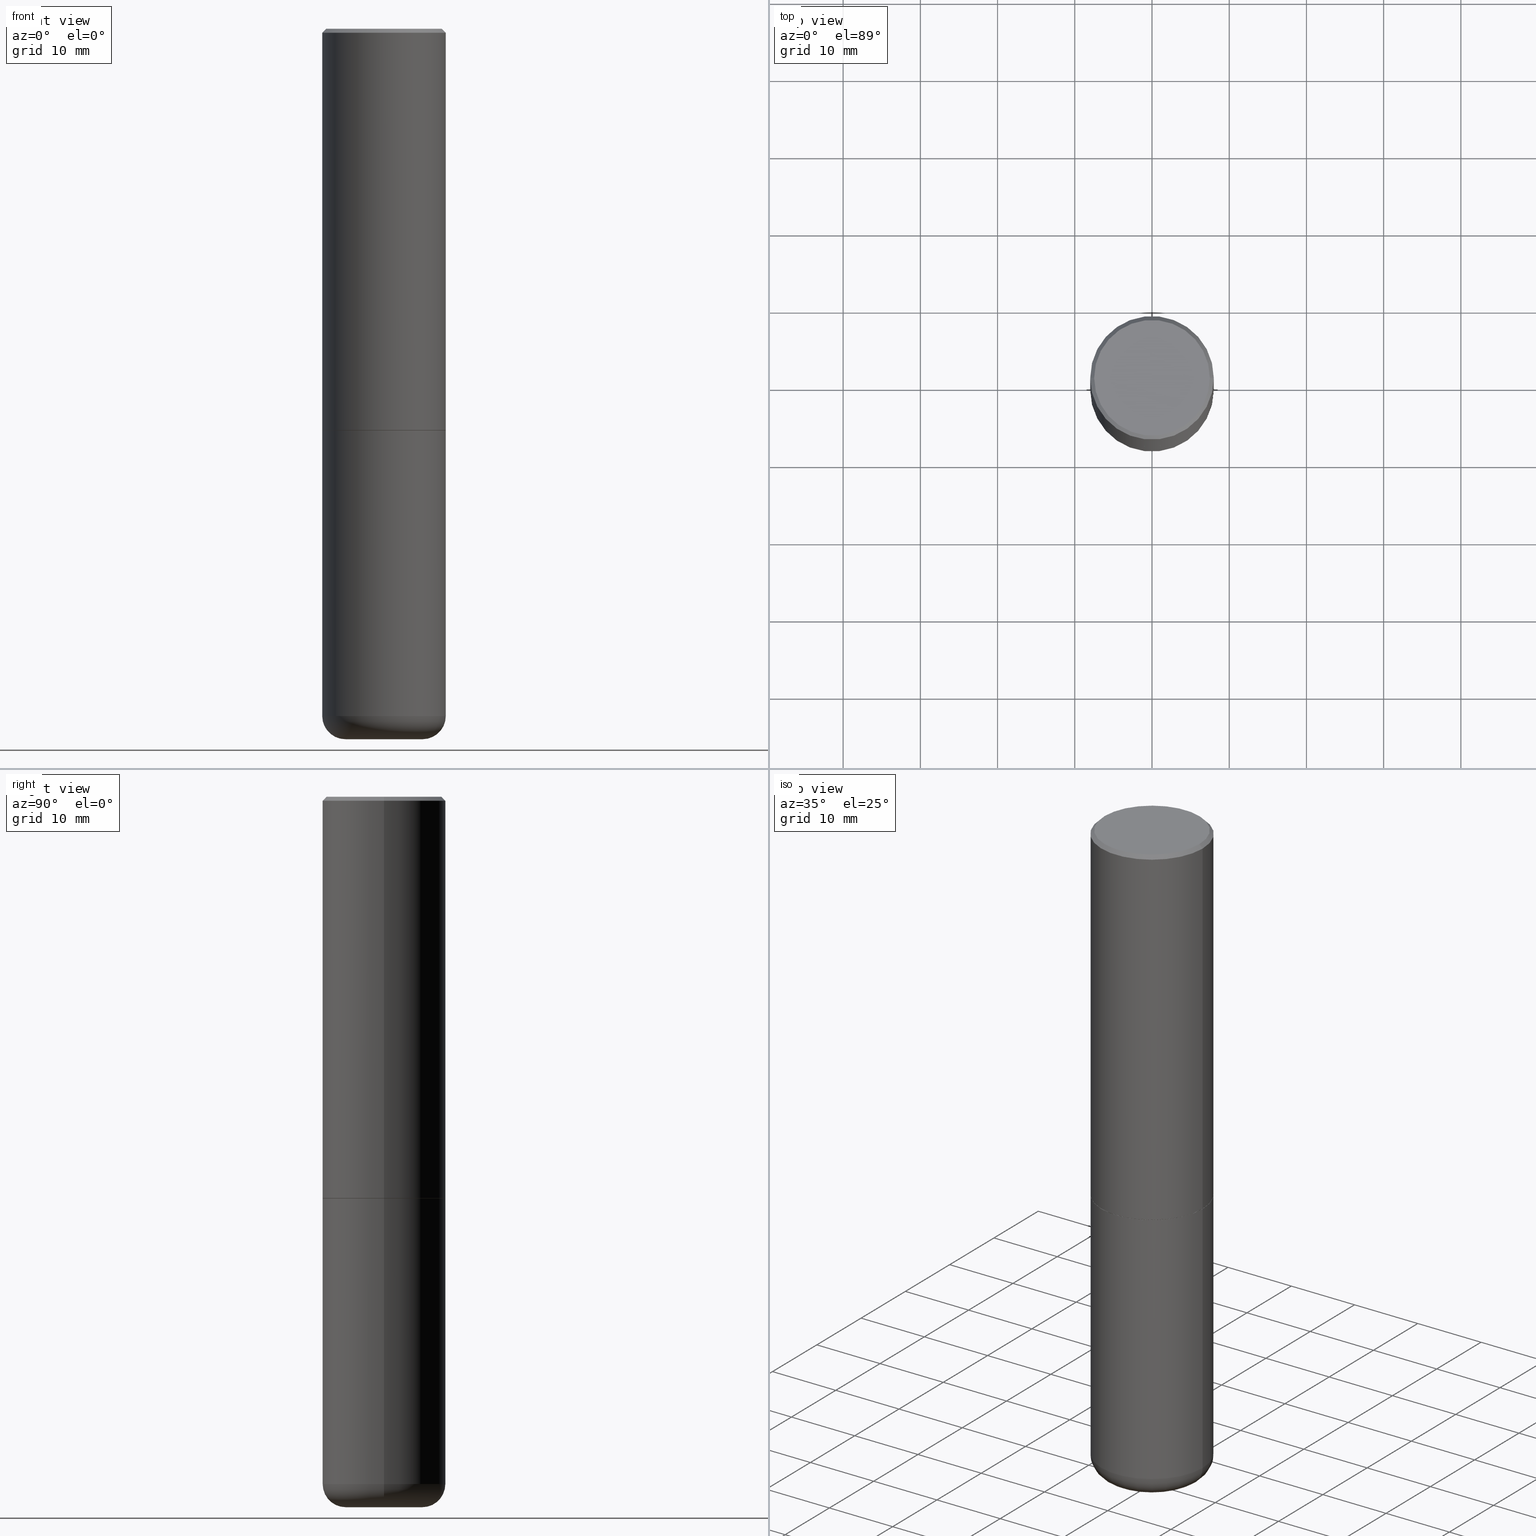
[diagram: canonical four-view strip — front | top / right | iso, engineering-drawing reading convention]
A machine part, canonical four-view strip (front | top / right | iso — engineering-drawing reading convention). The complete STEP part file that produces these views, byte-faithful:
ISO-10303-21;
HEADER;
FILE_DESCRIPTION (( 'STEP AP203' ),
    '1' );
FILE_NAME ('74750.STEP',
    '2024-05-02T19:16:22',
    ( '' ),
    ( '' ),
    'SwSTEP 2.0',
    'SolidWorks 2023',
    '' );
FILE_SCHEMA (( 'CONFIG_CONTROL_DESIGN' ));
ENDSEC;

DATA;
#1 = CIRCLE ( 'NONE', #268, 0.1180999999999999966 ) ;
#2 = CC_DESIGN_APPROVAL ( #97, ( #249 ) ) ;
#3 = CC_DESIGN_PERSON_AND_ORGANIZATION_ASSIGNMENT ( #110, #313, ( #133 ) ) ;
#4 = EDGE_LOOP ( 'NONE', ( #309, #94 ) ) ;
#5 = ORIENTED_EDGE ( 'NONE', *, *, #129, .T. ) ;
#6 = CIRCLE ( 'NONE', #173, 0.3149500000000002853 ) ;
#7 = ORGANIZATION ( 'UNSPECIFIED', 'UNSPECIFIED', '' ) ;
#8 = APPROVAL_STATUS ( 'not_yet_approved' ) ;
#9 = EDGE_CURVE ( 'NONE', #78, #160, #261, .T. ) ;
#10 = APPROVAL_DATE_TIME ( #314, #252 ) ;
#11 = DIRECTION ( 'NONE',  ( -2.445468806185136597E-29, 3.491481338843145583E-15, 1.000000000000000000 ) ) ;
#12 = DIRECTION ( 'NONE',  ( 0.000000000000000000, 0.000000000000000000, 1.000000000000000000 ) ) ;
#13 = DIRECTION ( 'NONE',  ( -2.445468806185136597E-29, 3.491481338843145583E-15, 1.000000000000000000 ) ) ;
#14 = APPROVAL_STATUS ( 'not_yet_approved' ) ;
#15 = ADVANCED_FACE ( 'NONE', ( #380 ), #364, .T. ) ;
#16 = APPROVAL_PERSON_ORGANIZATION ( #69, #340, #332 ) ;
#17 = DIRECTION ( 'NONE',  ( 1.000000000000000000, -6.982962677686267499E-15, 0.000000000000000000 ) ) ;
#18 = DIRECTION ( 'NONE',  ( 1.000000000000000000, -6.982962677686263555E-15, 4.883557194083111780E-29 ) ) ;
#19 = DIRECTION ( 'NONE',  ( -0.7071067811865465735, 2.468850131082246805E-15, -0.7071067811865484609 ) ) ;
#20 = SHAPE_DEFINITION_REPRESENTATION ( #67, #183 ) ;
#21 = PERSON ( 'UNSPECIFIED', 'UNSPECIFIED', 'UNSPECIFIED', ('UNSPECIFIED'), ('UNSPECIFIED'), ('UNSPECIFIED') ) ;
#22 = DIRECTION ( 'NONE',  ( 1.000000000000000000, -6.982962677686265922E-15, 4.876176775795935232E-29 ) ) ;
#23 = CLOSED_SHELL ( 'NONE', ( #56, #149, #406, #400, #25, #244 ) ) ;
#24 = AXIS2_PLACEMENT_3D ( 'NONE', #151, #247, #65 ) ;
#25 = ADVANCED_FACE ( 'NONE', ( #344 ), #207, .T. ) ;
#26 = DIRECTION ( 'NONE',  ( 1.000000000000000000, -6.982962677686265922E-15, 4.874125435057325556E-29 ) ) ;
#27 = CARTESIAN_POINT ( 'NONE',  ( 0.3149500000000002853, -9.343553210878135066E-15, -2.046199999999999797 ) ) ;
#28 = CARTESIAN_POINT ( 'NONE',  ( 0.2949499999999997679, -2.127023677808858891E-15, 1.835460370743323251E-16 ) ) ;
#29 = AXIS2_PLACEMENT_3D ( 'NONE', #179, #276, #120 ) ;
#30 = AXIS2_PLACEMENT_3D ( 'NONE', #381, #70, #333 ) ;
#31 = ORIENTED_EDGE ( 'NONE', *, *, #258, .T. ) ;
#32 = EDGE_LOOP ( 'NONE', ( #72, #259 ) ) ;
#33 = ORIENTED_EDGE ( 'NONE', *, *, #232, .F. ) ;
#34 = EDGE_LOOP ( 'NONE', ( #64, #132, #396, #374 ) ) ;
#35 = ORIENTED_EDGE ( 'NONE', *, *, #353, .T. ) ;
#36 = APPROVAL_PERSON_ORGANIZATION ( #107, #97, #204 ) ;
#37 = DIRECTION ( 'NONE',  ( 1.000000000000000000, -6.982962677686264344E-15, 0.000000000000000000 ) ) ;
#38 = CC_DESIGN_PERSON_AND_ORGANIZATION_ASSIGNMENT ( #234, #383, ( #249 ) ) ;
#39 = CARTESIAN_POINT ( 'NONE',  ( -0.3149500000000002853, -1.369195024882414317E-15, -2.046199999999999797 ) ) ;
#40 = FACE_OUTER_BOUND ( 'NONE', #302, .T. ) ;
#41 = TOROIDAL_SURFACE ( 'NONE', #289, 0.1968500000000000250, 0.1181000000000000105 ) ;
#42 = AXIS2_PLACEMENT_3D ( 'NONE', #89, #355, #22 ) ;
#43 = ORIENTED_EDGE ( 'NONE', *, *, #201, .T. ) ;
#44 = PLANE ( 'NONE',  #30 ) ;
#45 =( CONVERSION_BASED_UNIT ( 'INCH', #405 ) LENGTH_UNIT ( ) NAMED_UNIT ( #59 ) );
#46 = DIRECTION ( 'NONE',  ( -1.000000000000000000, 7.105427357601005014E-15, 0.000000000000000000 ) ) ;
#47 = LINE ( 'NONE', #86, #125 ) ;
#48 = EDGE_CURVE ( 'NONE', #321, #196, #408, .T. ) ;
#49 = DATE_AND_TIME ( #373, #388 ) ;
#50 = CARTESIAN_POINT ( 'NONE',  ( 0.1968500000000000250, -1.360839766627503947E-14, -3.503899999999999793 ) ) ;
#51 = DIRECTION ( 'NONE',  ( -2.445468806185136597E-29, 3.491481338843145583E-15, 1.000000000000000000 ) ) ;
#52 = VECTOR ( 'NONE', #88, 39.37007874015748143 ) ;
#53 = DATE_TIME_ROLE ( 'creation_date' ) ;
#54 = DIRECTION ( 'NONE',  ( 2.445468806185136597E-29, -3.491481338843145583E-15, -1.000000000000000000 ) ) ;
#55 = FACE_OUTER_BOUND ( 'NONE', #32, .T. ) ;
#56 = ADVANCED_FACE ( 'NONE', ( #211 ), #127, .T. ) ;
#57 = DIRECTION ( 'NONE',  ( -2.445468806185136597E-29, 3.491481338843145583E-15, 1.000000000000000000 ) ) ;
#58 = AXIS2_PLACEMENT_3D ( 'NONE', #338, #266, #37 ) ;
#59 = DIMENSIONAL_EXPONENTS ( 1.000000000000000000, 0.000000000000000000, 0.000000000000000000, 0.000000000000000000, 0.000000000000000000, 0.000000000000000000, 0.000000000000000000 ) ;
#60 = DIRECTION ( 'NONE',  ( 0.7071067811865465735, -7.319954787623252890E-15, -0.7071067811865484609 ) ) ;
#61 = EDGE_CURVE ( 'NONE', #196, #282, #47, .T. ) ;
#62 = AXIS2_PLACEMENT_3D ( 'NONE', #357, #279, #209 ) ;
#63 = EDGE_LOOP ( 'NONE', ( #342, #43, #397, #166 ) ) ;
#64 = ORIENTED_EDGE ( 'NONE', *, *, #198, .F. ) ;
#65 = DIRECTION ( 'NONE',  ( 1.000000000000000000, -6.982962677686267499E-15, 0.000000000000000000 ) ) ;
#66 = VECTOR ( 'NONE', #19, 39.37007874015748143 ) ;
#67 = PRODUCT_DEFINITION_SHAPE ( 'NONE', 'NONE',  #133 ) ;
#68 = EDGE_CURVE ( 'NONE', #160, #142, #1, .T. ) ;
#69 = PERSON_AND_ORGANIZATION ( #21, #7 ) ;
#70 = DIRECTION ( 'NONE',  ( 2.438088387897960049E-29, -3.491481338843145188E-15, -1.000000000000000000 ) ) ;
#71 = COORDINATED_UNIVERSAL_TIME_OFFSET ( 5, 0, .BEHIND. ) ;
#72 = ORIENTED_EDGE ( 'NONE', *, *, #187, .F. ) ;
#73 = FACE_OUTER_BOUND ( 'NONE', #217, .T. ) ;
#74 = ORIENTED_EDGE ( 'NONE', *, *, #76, .F. ) ;
#75 = CONICAL_SURFACE ( 'NONE', #257, 0.3139500000000000068, 0.7853981633976873100 ) ;
#76 = EDGE_CURVE ( 'NONE', #105, #142, #295, .T. ) ;
#77 = CARTESIAN_POINT ( 'NONE',  ( 5.003918271216025517E-29, -7.144269115540843617E-15, -2.046199999999999797 ) ) ;
#78 = VERTEX_POINT ( 'NONE', #281 ) ;
#79 = SECURITY_CLASSIFICATION_LEVEL ( 'unclassified' ) ;
#80 = CARTESIAN_POINT ( 'NONE',  ( 4.890937612370289799E-31, -6.982962677686315028E-17, -0.02000000000000006981 ) ) ;
#81 = CARTESIAN_POINT ( 'NONE',  ( 5.006363740022211680E-29, -7.147760596879688202E-15, -2.047200000000000131 ) ) ;
#82 =( NAMED_UNIT ( * ) SI_UNIT ( $, .STERADIAN. ) SOLID_ANGLE_UNIT ( ) );
#83 = DIRECTION ( 'NONE',  ( -2.445468806185136597E-29, 3.491481338843145583E-15, 1.000000000000000000 ) ) ;
#84 = CIRCLE ( 'NONE', #317, 0.3149499999999999522 ) ;
#85 = CARTESIAN_POINT ( 'NONE',  ( 5.006363740022209999E-29, -7.147760596879685046E-15, -2.047199999999999243 ) ) ;
#86 = CARTESIAN_POINT ( 'NONE',  ( -0.3149500000000001743, 2.237854346276436774E-15, -1.549218606675783237E-29 ) ) ;
#87 = APPROVAL_DATE_TIME ( #362, #340 ) ;
#88 = DIRECTION ( 'NONE',  ( -0.7071067811867165487, 7.493145998870964739E-15, 0.7071067811863784858 ) ) ;
#89 = CARTESIAN_POINT ( 'NONE',  ( 0.000000000000000000, 0.000000000000000000, 0.000000000000000000 ) ) ;
#90 = DIRECTION ( 'NONE',  ( -2.445468806185136597E-29, 3.491481338843145583E-15, 1.000000000000000000 ) ) ;
#91 = CC_DESIGN_SECURITY_CLASSIFICATION ( #222, ( #249 ) ) ;
#92 = ADVANCED_FACE ( 'NONE', ( #73 ), #359, .T. ) ;
#93 = CARTESIAN_POINT ( 'NONE',  ( -0.2949499999999997679, 2.094539655171994924E-15, 1.835460370743031619E-16 ) ) ;
#94 = ORIENTED_EDGE ( 'NONE', *, *, #258, .F. ) ;
#95 = VECTOR ( 'NONE', #223, 39.37007874015748143 ) ;
#96 = ORIENTED_EDGE ( 'NONE', *, *, #232, .T. ) ;
#97 = APPROVAL ( #267, 'UNSPECIFIED' ) ;
#98 = ORIENTED_EDGE ( 'NONE', *, *, #322, .F. ) ;
#99 = CIRCLE ( 'NONE', #325, 0.3139500000000000068 ) ;
#100 = CIRCLE ( 'NONE', #361, 0.3149500000000000077 ) ;
#101 = EDGE_CURVE ( 'NONE', #113, #282, #84, .T. ) ;
#102 = APPROVAL_PERSON_ORGANIZATION ( #283, #252, #273 ) ;
#103 = EDGE_LOOP ( 'NONE', ( #369, #272, #367, #265 ) ) ;
#104 = PERSON_AND_ORGANIZATION_ROLE ( 'creator' ) ;
#105 = VERTEX_POINT ( 'NONE', #382 ) ;
#106 = DIRECTION ( 'NONE',  ( -1.000000000000000000, 6.982962677686265922E-15, -4.876176775795935793E-29 ) ) ;
#107 = PERSON_AND_ORGANIZATION ( #21, #7 ) ;
#108 = ORIENTED_EDGE ( 'NONE', *, *, #236, .F. ) ;
#109 = DIRECTION ( 'NONE',  ( 1.000000000000000000, -6.982962677686265922E-15, 4.876176775795935793E-29 ) ) ;
#110 = PERSON_AND_ORGANIZATION ( #21, #7 ) ;
#111 = EDGE_CURVE ( 'NONE', #162, #321, #99, .T. ) ;
#112 = CARTESIAN_POINT ( 'NONE',  ( 5.006363740022211120E-29, -7.147760596879686624E-15, -2.047199999999999687 ) ) ;
#113 = VERTEX_POINT ( 'NONE', #224 ) ;
#114 = DIRECTION ( 'NONE',  ( 1.000000000000000000, -6.982962677686266711E-15, 0.000000000000000000 ) ) ;
#115 = EDGE_LOOP ( 'NONE', ( #393, #5, #96, #263 ) ) ;
#116 = AXIS2_PLACEMENT_3D ( 'NONE', #150, #370, #235 ) ;
#117 = PERSON_AND_ORGANIZATION ( #21, #7 ) ;
#118 = DIRECTION ( 'NONE',  ( 1.000000000000000000, -6.982962677686267499E-15, 0.000000000000000000 ) ) ;
#119 = PERSON_AND_ORGANIZATION_ROLE ( 'design_owner' ) ;
#120 = DIRECTION ( 'NONE',  ( 1.000000000000000000, -6.982962677686267499E-15, 0.000000000000000000 ) ) ;
#121 = CARTESIAN_POINT ( 'NONE',  ( 0.3149500000000001743, -2.199284095337290660E-15, 1.535751875536930690E-29 ) ) ;
#122 = DIRECTION ( 'NONE',  ( 1.000000000000000000, -6.982962677686263555E-15, 0.000000000000000000 ) ) ;
#123 = DIRECTION ( 'NONE',  ( -2.445468806185136877E-29, 3.491481338843145188E-15, 1.000000000000000000 ) ) ;
#124 = ADVANCED_FACE ( 'NONE', ( #143 ), #248, .T. ) ;
#125 = VECTOR ( 'NONE', #348, 39.37007874015748143 ) ;
#126 = VECTOR ( 'NONE', #60, 39.37007874015748143 ) ;
#127 = CYLINDRICAL_SURFACE ( 'NONE', #62, 0.3149500000000000077 ) ;
#128 = LINE ( 'NONE', #121, #202 ) ;
#129 = EDGE_CURVE ( 'NONE', #196, #394, #6, .T. ) ;
#130 = AXIS2_PLACEMENT_3D ( 'NONE', #350, #54, #188 ) ;
#131 = CC_DESIGN_APPROVAL ( #340, ( #222 ) ) ;
#132 = ORIENTED_EDGE ( 'NONE', *, *, #76, .T. ) ;
#133 = PRODUCT_DEFINITION ( 'UNKNOWN', '', #249, #301 ) ;
#134 = LOCAL_TIME ( 15, 16, 22.00000000000000000, #240 ) ;
#135 = EDGE_LOOP ( 'NONE', ( #206, #297 ) ) ;
#136 = ORIENTED_EDGE ( 'NONE', *, *, #176, .T. ) ;
#137 = EDGE_CURVE ( 'NONE', #394, #196, #410, .T. ) ;
#138 = DIRECTION ( 'NONE',  ( 2.438088387897960049E-29, -3.491481338843145188E-15, -1.000000000000000000 ) ) ;
#139 =( LENGTH_UNIT ( ) NAMED_UNIT ( * ) SI_UNIT ( $, .METRE. ) );
#140 = LINE ( 'NONE', #208, #311 ) ;
#141 = FACE_OUTER_BOUND ( 'NONE', #103, .T. ) ;
#142 = VERTEX_POINT ( 'NONE', #384 ) ;
#143 = FACE_OUTER_BOUND ( 'NONE', #63, .T. ) ;
#144 = EDGE_LOOP ( 'NONE', ( #331, #416, #339, #33 ) ) ;
#145 = CALENDAR_DATE ( 2024, 2, 5 ) ;
#146 = DIRECTION ( 'NONE',  ( -6.982962677686266711E-15, -1.000000000000000000, 3.491481338843145583E-15 ) ) ;
#147 = FACE_OUTER_BOUND ( 'NONE', #4, .T. ) ;
#148 = ORIENTED_EDGE ( 'NONE', *, *, #308, .F. ) ;
#149 = ADVANCED_FACE ( 'NONE', ( #141 ), #41, .T. ) ;
#150 = CARTESIAN_POINT ( 'NONE',  ( 8.857488016002564476E-29, -1.264614540928987199E-14, -3.621999999999999886 ) ) ;
#151 = CARTESIAN_POINT ( 'NONE',  ( 8.857488016002564476E-29, -1.264614540928987199E-14, -3.621999999999999886 ) ) ;
#152 = MANIFOLD_SOLID_BREP ( 'Body-Move/Copy2[1]', #23 ) ;
#153 = CARTESIAN_POINT ( 'NONE',  ( 8.568678149992099474E-29, -1.223380146317249786E-14, -3.503899999999999793 ) ) ;
#154 = FACE_OUTER_BOUND ( 'NONE', #144, .T. ) ;
#155 = FACE_OUTER_BOUND ( 'NONE', #34, .T. ) ;
#156 = AXIS2_PLACEMENT_3D ( 'NONE', #81, #312, #109 ) ;
#157 = AXIS2_PLACEMENT_3D ( 'NONE', #307, #270, #46 ) ;
#158 = DIRECTION ( 'NONE',  ( 1.000000000000000000, -6.982962677686265922E-15, 4.874125435057325556E-29 ) ) ;
#159 = EDGE_LOOP ( 'NONE', ( #136, #329, #98, #165 ) ) ;
#160 = VERTEX_POINT ( 'NONE', #212 ) ;
#161 = EDGE_CURVE ( 'NONE', #142, #199, #184, .T. ) ;
#162 = VERTEX_POINT ( 'NONE', #345 ) ;
#163 = ORIENTED_EDGE ( 'NONE', *, *, #417, .F. ) ;
#164 = AXIS2_PLACEMENT_3D ( 'NONE', #356, #83, #174 ) ;
#165 = ORIENTED_EDGE ( 'NONE', *, *, #161, .F. ) ;
#166 = ORIENTED_EDGE ( 'NONE', *, *, #353, .F. ) ;
#167 = ADVANCED_FACE ( 'NONE', ( #147 ), #284, .F. ) ;
#168 = CARTESIAN_POINT ( 'NONE',  ( -0.3149499999999999522, 2.129454468560426178E-15, -0.02000000000000006981 ) ) ;
#169 = ORIENTED_EDGE ( 'NONE', *, *, #412, .T. ) ;
#170 = CARTESIAN_POINT ( 'NONE',  ( 8.726305720484796028E-29, -1.820591954908441559E-15, -2.047200000000000131 ) ) ;
#171 =( NAMED_UNIT ( * ) PLANE_ANGLE_UNIT ( ) SI_UNIT ( $, .RADIAN. ) );
#172 = CARTESIAN_POINT ( 'NONE',  ( 5.006363740022211120E-29, -7.147760596879686624E-15, -2.047199999999999687 ) ) ;
#173 = AXIS2_PLACEMENT_3D ( 'NONE', #239, #404, #17 ) ;
#174 = DIRECTION ( 'NONE',  ( 1.000000000000000000, -6.982962677686264344E-15, 0.000000000000000000 ) ) ;
#175 = APPLICATION_PROTOCOL_DEFINITION ( 'international standard', 'config_control_design', 1994, #305 ) ;
#176 = EDGE_CURVE ( 'NONE', #142, #105, #326, .T. ) ;
#177 = MECHANICAL_CONTEXT ( 'NONE', #324, 'mechanical' ) ;
#178 = CARTESIAN_POINT ( 'NONE',  ( -0.3139500000000000068, -4.911713223612628457E-15, -2.047199999999999243 ) ) ;
#179 = CARTESIAN_POINT ( 'NONE',  ( 8.857488016002564476E-29, -1.264614540928987199E-14, -3.621999999999999886 ) ) ;
#180 = DIRECTION ( 'NONE',  ( -2.445468806185136597E-29, 3.491481338843145583E-15, 1.000000000000000000 ) ) ;
#181 = EDGE_LOOP ( 'NONE', ( #233, #169 ) ) ;
#182 = PERSON_AND_ORGANIZATION ( #21, #7 ) ;
#183 = ADVANCED_BREP_SHAPE_REPRESENTATION ( '74750', ( #152, #300, #296 ), #197 ) ;
#184 = LINE ( 'NONE', #245, #95 ) ;
#185 = CIRCLE ( 'NONE', #157, 0.1180999999999999966 ) ;
#186 = CALENDAR_DATE ( 2024, 2, 5 ) ;
#187 = EDGE_CURVE ( 'NONE', #160, #78, #351, .T. ) ;
#188 = DIRECTION ( 'NONE',  ( -1.000000000000000000, 6.982962677686266711E-15, 0.000000000000000000 ) ) ;
#189 = PLANE ( 'NONE',  #116 ) ;
#190 = DIRECTION ( 'NONE',  ( 1.000000000000000000, -6.982962677686273021E-15, 0.000000000000000000 ) ) ;
#191 = ADVANCED_FACE ( 'NONE', ( #306 ), #44, .F. ) ;
#192 = LOCAL_TIME ( 15, 16, 22.00000000000000000, #349 ) ;
#193 = DIRECTION ( 'NONE',  ( 1.000000000000000000, -6.982962677686264344E-15, 0.000000000000000000 ) ) ;
#194 = CYLINDRICAL_SURFACE ( 'NONE', #42, 0.3149500000000001743 ) ;
#195 = ORIENTED_EDGE ( 'NONE', *, *, #417, .T. ) ;
#196 = VERTEX_POINT ( 'NONE', #39 ) ;
#197 =( GEOMETRIC_REPRESENTATION_CONTEXT ( 3 ) GLOBAL_UNCERTAINTY_ASSIGNED_CONTEXT ( ( #368 ) ) GLOBAL_UNIT_ASSIGNED_CONTEXT ( ( #45, #171, #82 ) ) REPRESENTATION_CONTEXT ( 'NONE', 'WORKASPACE' ) );
#198 = EDGE_CURVE ( 'NONE', #105, #238, #140, .T. ) ;
#199 = VERTEX_POINT ( 'NONE', #415 ) ;
#200 = ORIENTED_EDGE ( 'NONE', *, *, #271, .T. ) ;
#201 = EDGE_CURVE ( 'NONE', #221, #113, #390, .T. ) ;
#202 = VECTOR ( 'NONE', #228, 39.37007874015748143 ) ;
#203 = DIRECTION ( 'NONE',  ( -2.445468806185136597E-29, 3.491481338843145583E-15, 1.000000000000000000 ) ) ;
#204 = APPROVAL_ROLE ( '' ) ;
#205 = ORIENTED_EDGE ( 'NONE', *, *, #48, .F. ) ;
#206 = ORIENTED_EDGE ( 'NONE', *, *, #322, .T. ) ;
#207 = TOROIDAL_SURFACE ( 'NONE', #392, 0.1968500000000000250, 0.1181000000000000105 ) ;
#208 = CARTESIAN_POINT ( 'NONE',  ( -0.3149500000000000077, 2.237854346276435590E-15, -1.549218606675782676E-29 ) ) ;
#209 = DIRECTION ( 'NONE',  ( 1.000000000000000000, -6.982962677686266711E-15, 4.876176775795936353E-29 ) ) ;
#210 = DIRECTION ( 'NONE',  ( 1.000000000000000000, -6.982962677686266711E-15, 0.000000000000000000 ) ) ;
#211 = FACE_OUTER_BOUND ( 'NONE', #159, .T. ) ;
#212 = CARTESIAN_POINT ( 'NONE',  ( 0.1968500000000000250, -1.402074161239241360E-14, -3.621999999999999886 ) ) ;
#213 = VERTEX_POINT ( 'NONE', #93 ) ;
#214 = PERSON_AND_ORGANIZATION ( #21, #7 ) ;
#215 = ORIENTED_EDGE ( 'NONE', *, *, #111, .T. ) ;
#216 = CARTESIAN_POINT ( 'NONE',  ( 8.568678149992099474E-29, -1.223380146317249786E-14, -3.503899999999999793 ) ) ;
#217 = EDGE_LOOP ( 'NONE', ( #215, #376, #260, #163 ) ) ;
#218 = CC_DESIGN_PERSON_AND_ORGANIZATION_ASSIGNMENT ( #214, #347, ( #222 ) ) ;
#219 = DIRECTION ( 'NONE',  ( 0.7071067811867165487, -2.468850131084027659E-15, 0.7071067811863784858 ) ) ;
#220 = CALENDAR_DATE ( 2024, 2, 5 ) ;
#221 = VERTEX_POINT ( 'NONE', #28 ) ;
#222 = SECURITY_CLASSIFICATION ( '', '', #79 ) ;
#223 = DIRECTION ( 'NONE',  ( -2.445468806185136877E-29, 3.491481338843145188E-15, 1.000000000000000000 ) ) ;
#224 = CARTESIAN_POINT ( 'NONE',  ( 0.3149499999999999522, -2.230543471175006661E-15, -0.02000000000000006981 ) ) ;
#225 = LINE ( 'NONE', #298, #395 ) ;
#226 = CARTESIAN_POINT ( 'NONE',  ( 0.000000000000000000, 0.000000000000000000, 0.000000000000000000 ) ) ;
#227 = AXIS2_PLACEMENT_3D ( 'NONE', #358, #57, #255 ) ;
#228 = DIRECTION ( 'NONE',  ( -2.445468806185136877E-29, 3.491481338843145188E-15, 1.000000000000000000 ) ) ;
#229 = CC_DESIGN_PERSON_AND_ORGANIZATION_ASSIGNMENT ( #117, #104, ( #249 ) ) ;
#230 = AXIS2_PLACEMENT_3D ( 'NONE', #77, #319, #118 ) ;
#231 = CIRCLE ( 'NONE', #337, 0.3149499999999999522 ) ;
#232 = EDGE_CURVE ( 'NONE', #394, #113, #128, .T. ) ;
#233 = ORIENTED_EDGE ( 'NONE', *, *, #236, .T. ) ;
#234 = PERSON_AND_ORGANIZATION ( #21, #7 ) ;
#235 = DIRECTION ( 'NONE',  ( -1.000000000000000000, 6.982962677686265922E-15, -4.876176775795935793E-29 ) ) ;
#236 = EDGE_CURVE ( 'NONE', #213, #221, #403, .T. ) ;
#237 = COORDINATED_UNIVERSAL_TIME_OFFSET ( 5, 0, .BEHIND. ) ;
#238 = VERTEX_POINT ( 'NONE', #385 ) ;
#239 = CARTESIAN_POINT ( 'NONE',  ( 5.003918271216025517E-29, -7.144269115540843617E-15, -2.046199999999999797 ) ) ;
#240 = COORDINATED_UNIVERSAL_TIME_OFFSET ( 5, 0, .BEHIND. ) ;
#241 = AXIS2_PLACEMENT_3D ( 'NONE', #320, #180, #386 ) ;
#242 = LOCAL_TIME ( 15, 16, 22.00000000000000000, #413 ) ;
#243 = CARTESIAN_POINT ( 'NONE',  ( 4.890937612370289799E-31, -6.982962677686315028E-17, -0.02000000000000006981 ) ) ;
#244 = ADVANCED_FACE ( 'NONE', ( #55 ), #189, .T. ) ;
#245 = CARTESIAN_POINT ( 'NONE',  ( 0.3149500000000000077, -2.199284095337289871E-15, 1.535751875536930130E-29 ) ) ;
#246 = CARTESIAN_POINT ( 'NONE',  ( -4.488561081641444621E-45, 6.408475632635922878E-31, 1.835460370743176819E-16 ) ) ;
#247 = DIRECTION ( 'NONE',  ( -2.445468806185136597E-29, 3.491481338843145583E-15, 1.000000000000000000 ) ) ;
#248 = CONICAL_SURFACE ( 'NONE', #336, 0.3149499999999999522, 0.7853981633974469467 ) ;
#249 = PRODUCT_DEFINITION_FORMATION_WITH_SPECIFIED_SOURCE ( 'ANY', '', #293, .NOT_KNOWN. ) ;
#250 = DIRECTION ( 'NONE',  ( 2.445468806185136597E-29, -3.491481338843145583E-15, -1.000000000000000000 ) ) ;
#251 = FACE_OUTER_BOUND ( 'NONE', #115, .T. ) ;
#252 = APPROVAL ( #8, 'UNSPECIFIED' ) ;
#253 = DIRECTION ( 'NONE',  ( -2.445468806185136597E-29, 3.491481338843145583E-15, 1.000000000000000000 ) ) ;
#254 = DIRECTION ( 'NONE',  ( -2.445468806185136597E-29, 3.491481338843145583E-15, 1.000000000000000000 ) ) ;
#255 = DIRECTION ( 'NONE',  ( 1.000000000000000000, -6.982962677686266711E-15, 4.876176775795936353E-29 ) ) ;
#256 = CALENDAR_DATE ( 2024, 2, 5 ) ;
#257 = AXIS2_PLACEMENT_3D ( 'NONE', #85, #253, #193 ) ;
#258 = EDGE_CURVE ( 'NONE', #321, #162, #365, .T. ) ;
#259 = ORIENTED_EDGE ( 'NONE', *, *, #9, .F. ) ;
#260 = ORIENTED_EDGE ( 'NONE', *, *, #137, .F. ) ;
#261 = CIRCLE ( 'NONE', #29, 0.1968500000000000250 ) ;
#262 = CIRCLE ( 'NONE', #290, 0.2949499999999997679 ) ;
#263 = ORIENTED_EDGE ( 'NONE', *, *, #271, .F. ) ;
#264 = ORIENTED_EDGE ( 'NONE', *, *, #68, .T. ) ;
#265 = ORIENTED_EDGE ( 'NONE', *, *, #68, .F. ) ;
#266 = DIRECTION ( 'NONE',  ( -2.445468806185136597E-29, 3.491481338843145583E-15, 1.000000000000000000 ) ) ;
#267 = APPROVAL_STATUS ( 'not_yet_approved' ) ;
#268 = AXIS2_PLACEMENT_3D ( 'NONE', #50, #146, #190 ) ;
#269 = AXIS2_PLACEMENT_3D ( 'NONE', #172, #51, #285 ) ;
#270 = DIRECTION ( 'NONE',  ( 7.105427357601001859E-15, 1.000000000000000000, -3.491481338843145583E-15 ) ) ;
#271 = EDGE_CURVE ( 'NONE', #282, #113, #231, .T. ) ;
#272 = ORIENTED_EDGE ( 'NONE', *, *, #308, .T. ) ;
#273 = APPROVAL_ROLE ( '' ) ;
#274 = DIRECTION ( 'NONE',  ( -2.445468806185136597E-29, 3.491481338843145583E-15, 1.000000000000000000 ) ) ;
#275 = DIRECTION ( 'NONE',  ( 1.000000000000000000, 0.000000000000000000, 0.000000000000000000 ) ) ;
#276 = DIRECTION ( 'NONE',  ( -2.445468806185136597E-29, 3.491481338843145583E-15, 1.000000000000000000 ) ) ;
#277 = DATE_AND_TIME ( #186, #280 ) ;
#278 = EDGE_CURVE ( 'NONE', #238, #199, #100, .T. ) ;
#279 = DIRECTION ( 'NONE',  ( -2.445468806185136597E-29, 3.491481338843145583E-15, 1.000000000000000000 ) ) ;
#280 = LOCAL_TIME ( 15, 16, 22.00000000000000000, #237 ) ;
#281 = CARTESIAN_POINT ( 'NONE',  ( -0.1968500000000000250, -1.062169457542108922E-14, -3.621999999999999886 ) ) ;
#282 = VERTEX_POINT ( 'NONE', #168 ) ;
#283 = PERSON_AND_ORGANIZATION ( #21, #7 ) ;
#284 = PLANE ( 'NONE',  #156 ) ;
#285 = DIRECTION ( 'NONE',  ( 1.000000000000000000, -6.982962677686269866E-15, 0.000000000000000000 ) ) ;
#286 = CARTESIAN_POINT ( 'NONE',  ( -0.3149499999999999522, 2.129454468560426178E-15, -0.02000000000000006981 ) ) ;
#287 = DIRECTION ( 'NONE',  ( -2.445468806185136597E-29, 3.491481338843145583E-15, 1.000000000000000000 ) ) ;
#288 = DIRECTION ( 'NONE',  ( 1.000000000000000000, -6.982962677686265922E-15, 4.876176775795935232E-29 ) ) ;
#289 = AXIS2_PLACEMENT_3D ( 'NONE', #399, #274, #401 ) ;
#290 = AXIS2_PLACEMENT_3D ( 'NONE', #292, #90, #158 ) ;
#291 = CYLINDRICAL_SURFACE ( 'NONE', #227, 0.3149500000000000077 ) ;
#292 = CARTESIAN_POINT ( 'NONE',  ( -4.488561081641444621E-45, 6.408475632635922878E-31, 1.835460370743176819E-16 ) ) ;
#293 = PRODUCT ( '74750', '74750', '', ( #177 ) ) ;
#294 = FACE_OUTER_BOUND ( 'NONE', #135, .T. ) ;
#295 = CIRCLE ( 'NONE', #241, 0.3149500000000000077 ) ;
#296 = AXIS2_PLACEMENT_3D ( 'NONE', #335, #12, #275 ) ;
#297 = ORIENTED_EDGE ( 'NONE', *, *, #278, .T. ) ;
#298 = CARTESIAN_POINT ( 'NONE',  ( 0.3139500000000000068, -9.340061729539288903E-15, -2.047199999999999243 ) ) ;
#299 = ORIENTED_EDGE ( 'NONE', *, *, #201, .F. ) ;
#300 = MANIFOLD_SOLID_BREP ( 'Body-Move/Copy2[2]', #310 ) ;
#301 = DESIGN_CONTEXT ( 'detailed design', #305, 'design' ) ;
#302 = EDGE_LOOP ( 'NONE', ( #205, #31, #195, #418 ) ) ;
#303 = AXIS2_PLACEMENT_3D ( 'NONE', #246, #254, #26 ) ;
#304 = EDGE_LOOP ( 'NONE', ( #299, #108, #35, #200 ) ) ;
#305 = APPLICATION_CONTEXT ( 'configuration controlled 3d designs of mechanical parts and assemblies' ) ;
#306 = FACE_OUTER_BOUND ( 'NONE', #181, .T. ) ;
#307 = CARTESIAN_POINT ( 'NONE',  ( -0.1968500000000000250, -1.083509808782873928E-14, -3.503899999999999793 ) ) ;
#308 = EDGE_CURVE ( 'NONE', #78, #105, #185, .T. ) ;
#309 = ORIENTED_EDGE ( 'NONE', *, *, #111, .F. ) ;
#310 = CLOSED_SHELL ( 'NONE', ( #92, #360, #124, #15, #387, #327, #167, #191 ) ) ;
#311 = VECTOR ( 'NONE', #123, 39.37007874015748143 ) ;
#312 = DIRECTION ( 'NONE',  ( -2.438088387897960049E-29, 3.491481338843145188E-15, 1.000000000000000000 ) ) ;
#313 = PERSON_AND_ORGANIZATION_ROLE ( 'creator' ) ;
#314 = DATE_AND_TIME ( #220, #134 ) ;
#315 = DIRECTION ( 'NONE',  ( 1.000000000000000000, -6.982962677686264344E-15, 0.000000000000000000 ) ) ;
#316 = DATE_TIME_ROLE ( 'classification_date' ) ;
#317 = AXIS2_PLACEMENT_3D ( 'NONE', #341, #11, #114 ) ;
#318 = CC_DESIGN_APPROVAL ( #252, ( #133 ) ) ;
#319 = DIRECTION ( 'NONE',  ( -2.445468806185136597E-29, 3.491481338843145583E-15, 1.000000000000000000 ) ) ;
#320 = CARTESIAN_POINT ( 'NONE',  ( 8.568678149992099474E-29, -1.223380146317249786E-14, -3.503899999999999793 ) ) ;
#321 = VERTEX_POINT ( 'NONE', #178 ) ;
#322 = EDGE_CURVE ( 'NONE', #199, #238, #414, .T. ) ;
#323 = DIRECTION ( 'NONE',  ( -2.445468806185136597E-29, 3.491481338843145583E-15, 1.000000000000000000 ) ) ;
#324 = APPLICATION_CONTEXT ( 'configuration controlled 3d designs of mechanical parts and assemblies' ) ;
#325 = AXIS2_PLACEMENT_3D ( 'NONE', #409, #375, #315 ) ;
#326 = CIRCLE ( 'NONE', #372, 0.3149500000000000077 ) ;
#327 = ADVANCED_FACE ( 'NONE', ( #40 ), #75, .T. ) ;
#328 = EDGE_LOOP ( 'NONE', ( #148, #334, #264, #74 ) ) ;
#329 = ORIENTED_EDGE ( 'NONE', *, *, #198, .T. ) ;
#330 = CC_DESIGN_DATE_AND_TIME_ASSIGNMENT ( #402, #53, ( #133 ) ) ;
#331 = ORIENTED_EDGE ( 'NONE', *, *, #137, .T. ) ;
#332 = APPROVAL_ROLE ( '' ) ;
#333 = DIRECTION ( 'NONE',  ( -1.000000000000000000, 6.982962677686265922E-15, -4.876176775795935793E-29 ) ) ;
#334 = ORIENTED_EDGE ( 'NONE', *, *, #9, .T. ) ;
#335 = CARTESIAN_POINT ( 'NONE',  ( 0.000000000000000000, 0.000000000000000000, 0.000000000000000000 ) ) ;
#336 = AXIS2_PLACEMENT_3D ( 'NONE', #243, #250, #389 ) ;
#337 = AXIS2_PLACEMENT_3D ( 'NONE', #80, #203, #210 ) ;
#338 = CARTESIAN_POINT ( 'NONE',  ( 5.006363740022209999E-29, -7.147760596879685046E-15, -2.047199999999999243 ) ) ;
#339 = ORIENTED_EDGE ( 'NONE', *, *, #101, .F. ) ;
#340 = APPROVAL ( #14, 'UNSPECIFIED' ) ;
#341 = CARTESIAN_POINT ( 'NONE',  ( 4.890937612370289799E-31, -6.982962677686315028E-17, -0.02000000000000006981 ) ) ;
#342 = ORIENTED_EDGE ( 'NONE', *, *, #412, .F. ) ;
#343 = DIRECTION ( 'NONE',  ( 1.000000000000000000, -6.982962677686269866E-15, 0.000000000000000000 ) ) ;
#344 = FACE_OUTER_BOUND ( 'NONE', #328, .T. ) ;
#345 = CARTESIAN_POINT ( 'NONE',  ( 0.3139500000000000068, -9.340061729539288903E-15, -2.047199999999999243 ) ) ;
#346 = PLANE ( 'NONE',  #378 ) ;
#347 = PERSON_AND_ORGANIZATION_ROLE ( 'classification_officer' ) ;
#348 = DIRECTION ( 'NONE',  ( -2.445468806185136877E-29, 3.491481338843145188E-15, 1.000000000000000000 ) ) ;
#349 = COORDINATED_UNIVERSAL_TIME_OFFSET ( 5, 0, .BEHIND. ) ;
#350 = CARTESIAN_POINT ( 'NONE',  ( 4.890937612370289799E-31, -6.982962677686315028E-17, -0.02000000000000006981 ) ) ;
#351 = CIRCLE ( 'NONE', #24, 0.1968500000000000250 ) ;
#352 = AXIS2_PLACEMENT_3D ( 'NONE', #226, #323, #288 ) ;
#353 = EDGE_CURVE ( 'NONE', #213, #282, #391, .T. ) ;
#354 = CYLINDRICAL_SURFACE ( 'NONE', #352, 0.3149500000000001743 ) ;
#355 = DIRECTION ( 'NONE',  ( -2.445468806185136597E-29, 3.491481338843145583E-15, 1.000000000000000000 ) ) ;
#356 = CARTESIAN_POINT ( 'NONE',  ( 5.006363740022209999E-29, -7.147760596879685046E-15, -2.047199999999999243 ) ) ;
#357 = CARTESIAN_POINT ( 'NONE',  ( 0.000000000000000000, 0.000000000000000000, 0.000000000000000000 ) ) ;
#358 = CARTESIAN_POINT ( 'NONE',  ( 0.000000000000000000, 0.000000000000000000, 0.000000000000000000 ) ) ;
#359 = CONICAL_SURFACE ( 'NONE', #164, 0.3139500000000000068, 0.7853981633976873100 ) ;
#360 = ADVANCED_FACE ( 'NONE', ( #154 ), #354, .T. ) ;
#361 = AXIS2_PLACEMENT_3D ( 'NONE', #112, #13, #343 ) ;
#362 = DATE_AND_TIME ( #256, #242 ) ;
#363 = CARTESIAN_POINT ( 'NONE',  ( 0.3149499999999999522, -2.230543471175006661E-15, -0.02000000000000006981 ) ) ;
#364 = CONICAL_SURFACE ( 'NONE', #130, 0.3149499999999999522, 0.7853981633974469467 ) ;
#365 = CIRCLE ( 'NONE', #58, 0.3139500000000000068 ) ;
#366 = PRODUCT_RELATED_PRODUCT_CATEGORY ( 'detail', '', ( #293 ) ) ;
#367 = ORIENTED_EDGE ( 'NONE', *, *, #176, .F. ) ;
#368 = UNCERTAINTY_MEASURE_WITH_UNIT (LENGTH_MEASURE( 1.000000000000000082E-05 ), #45, 'distance_accuracy_value', 'NONE');
#369 = ORIENTED_EDGE ( 'NONE', *, *, #187, .T. ) ;
#370 = DIRECTION ( 'NONE',  ( 2.438088387897960049E-29, -3.491481338843145188E-15, -1.000000000000000000 ) ) ;
#371 = CC_DESIGN_PERSON_AND_ORGANIZATION_ASSIGNMENT ( #182, #119, ( #293 ) ) ;
#372 = AXIS2_PLACEMENT_3D ( 'NONE', #216, #407, #122 ) ;
#373 = CALENDAR_DATE ( 2024, 2, 5 ) ;
#374 = ORIENTED_EDGE ( 'NONE', *, *, #278, .F. ) ;
#375 = DIRECTION ( 'NONE',  ( -2.445468806185136597E-29, 3.491481338843145583E-15, 1.000000000000000000 ) ) ;
#376 = ORIENTED_EDGE ( 'NONE', *, *, #48, .T. ) ;
#377 = APPLICATION_PROTOCOL_DEFINITION ( 'international standard', 'config_control_design', 1994, #324 ) ;
#378 = AXIS2_PLACEMENT_3D ( 'NONE', #170, #138, #106 ) ;
#379 = CC_DESIGN_DATE_AND_TIME_ASSIGNMENT ( #49, #316, ( #222 ) ) ;
#380 = FACE_OUTER_BOUND ( 'NONE', #304, .T. ) ;
#381 = CARTESIAN_POINT ( 'NONE',  ( 2.059624841783562486E-15, 0.2949499999999997679, -9.380394023546260134E-16 ) ) ;
#382 = CARTESIAN_POINT ( 'NONE',  ( -0.3149500000000000077, -9.995947116896063452E-15, -3.503899999999999793 ) ) ;
#383 = PERSON_AND_ORGANIZATION_ROLE ( 'design_supplier' ) ;
#384 = CARTESIAN_POINT ( 'NONE',  ( 0.3149500000000000077, -1.443308555850978615E-14, -3.503899999999999793 ) ) ;
#385 = CARTESIAN_POINT ( 'NONE',  ( -0.3149500000000000077, -7.452926683749657046E-15, -2.047199999999999687 ) ) ;
#386 = DIRECTION ( 'NONE',  ( 1.000000000000000000, -6.982962677686263555E-15, 0.000000000000000000 ) ) ;
#387 = ADVANCED_FACE ( 'NONE', ( #251 ), #194, .T. ) ;
#388 = LOCAL_TIME ( 15, 16, 22.00000000000000000, #71 ) ;
#389 = DIRECTION ( 'NONE',  ( -1.000000000000000000, 6.982962677686266711E-15, 0.000000000000000000 ) ) ;
#390 = LINE ( 'NONE', #363, #126 ) ;
#391 = LINE ( 'NONE', #286, #66 ) ;
#392 = AXIS2_PLACEMENT_3D ( 'NONE', #153, #287, #18 ) ;
#393 = ORIENTED_EDGE ( 'NONE', *, *, #61, .F. ) ;
#394 = VERTEX_POINT ( 'NONE', #27 ) ;
#395 = VECTOR ( 'NONE', #219, 39.37007874015748143 ) ;
#396 = ORIENTED_EDGE ( 'NONE', *, *, #161, .T. ) ;
#397 = ORIENTED_EDGE ( 'NONE', *, *, #101, .T. ) ;
#398 = APPROVAL_DATE_TIME ( #277, #97 ) ;
#399 = CARTESIAN_POINT ( 'NONE',  ( 8.568678149992099474E-29, -1.223380146317249786E-14, -3.503899999999999793 ) ) ;
#400 = ADVANCED_FACE ( 'NONE', ( #155 ), #291, .T. ) ;
#401 = DIRECTION ( 'NONE',  ( 1.000000000000000000, -6.982962677686263555E-15, 4.883557194083111780E-29 ) ) ;
#402 = DATE_AND_TIME ( #145, #192 ) ;
#403 = CIRCLE ( 'NONE', #303, 0.2949499999999997679 ) ;
#404 = DIRECTION ( 'NONE',  ( -2.445468806185136597E-29, 3.491481338843145583E-15, 1.000000000000000000 ) ) ;
#405 = LENGTH_MEASURE_WITH_UNIT ( LENGTH_MEASURE( 0.02539999999999999897 ), #139 );
#406 = ADVANCED_FACE ( 'NONE', ( #294 ), #346, .F. ) ;
#407 = DIRECTION ( 'NONE',  ( -2.445468806185136597E-29, 3.491481338843145583E-15, 1.000000000000000000 ) ) ;
#408 = LINE ( 'NONE', #411, #52 ) ;
#409 = CARTESIAN_POINT ( 'NONE',  ( 5.006363740022209999E-29, -7.147760596879685046E-15, -2.047199999999999243 ) ) ;
#410 = CIRCLE ( 'NONE', #230, 0.3149500000000002853 ) ;
#411 = CARTESIAN_POINT ( 'NONE',  ( -0.3139500000000000068, -4.917011677960851648E-15, -2.047199999999999243 ) ) ;
#412 = EDGE_CURVE ( 'NONE', #221, #213, #262, .T. ) ;
#413 = COORDINATED_UNIVERSAL_TIME_OFFSET ( 5, 0, .BEHIND. ) ;
#414 = CIRCLE ( 'NONE', #269, 0.3149500000000000077 ) ;
#415 = CARTESIAN_POINT ( 'NONE',  ( 0.3149500000000000077, -9.347044692216978073E-15, -2.047199999999999687 ) ) ;
#416 = ORIENTED_EDGE ( 'NONE', *, *, #61, .T. ) ;
#417 = EDGE_CURVE ( 'NONE', #162, #394, #225, .T. ) ;
#418 = ORIENTED_EDGE ( 'NONE', *, *, #129, .F. ) ;
ENDSEC;
END-ISO-10303-21;
